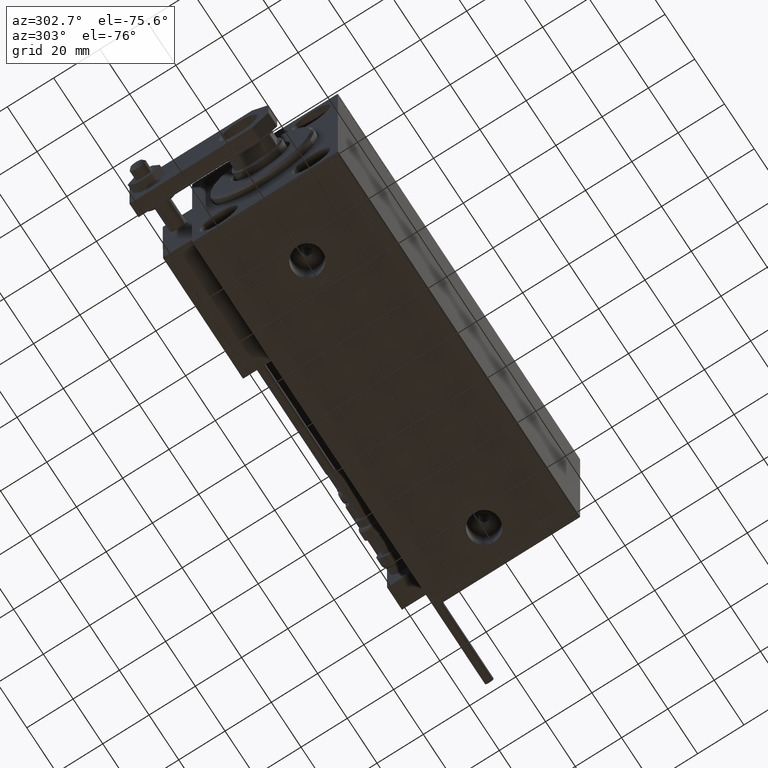
[diagram: clean part render]
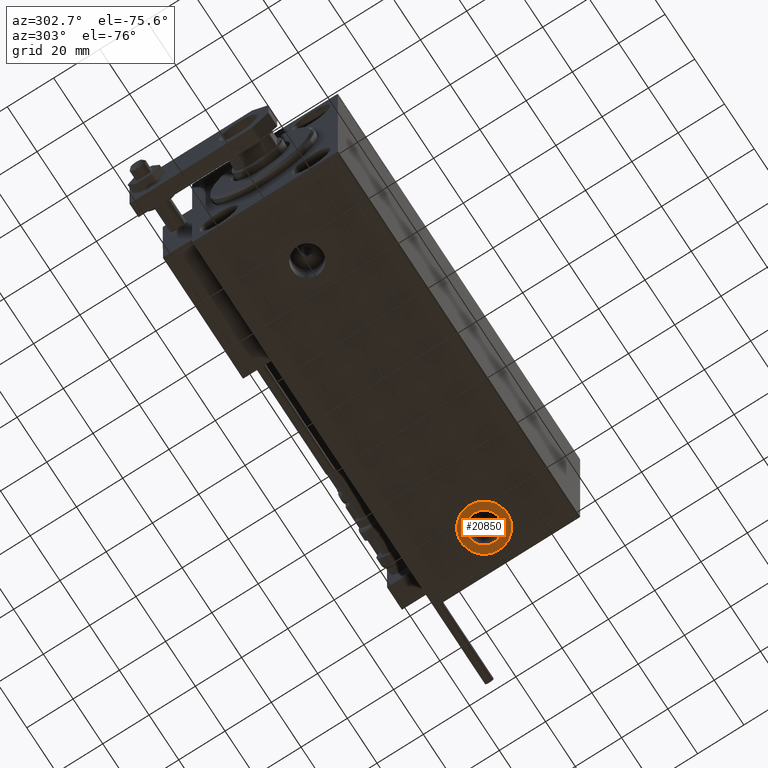
[diagram: same view with one face highlighted and labeled with its STEP entity id]
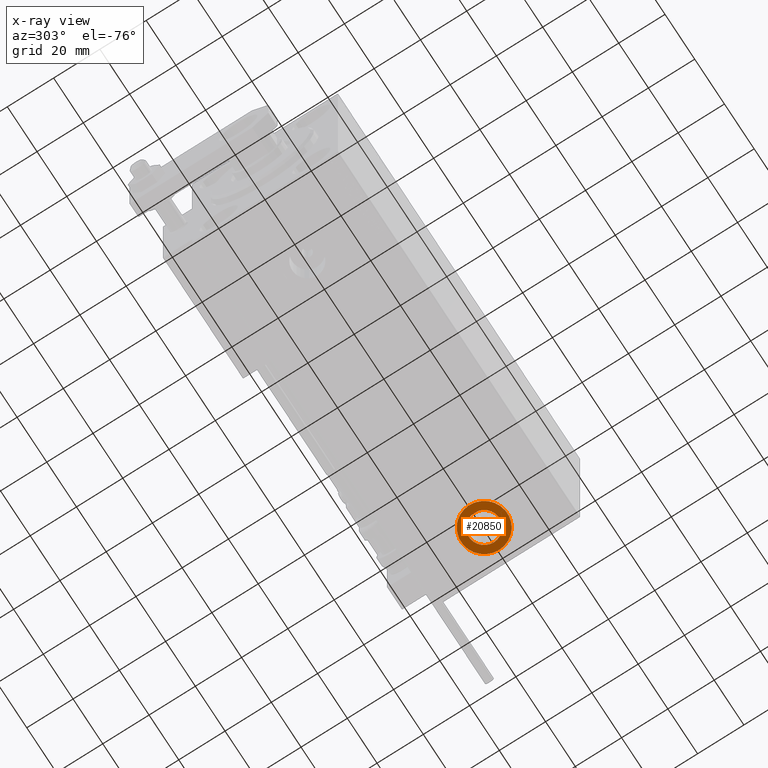
[diagram: x-ray of the same camera — body ghosted, the highlighted face saturated]
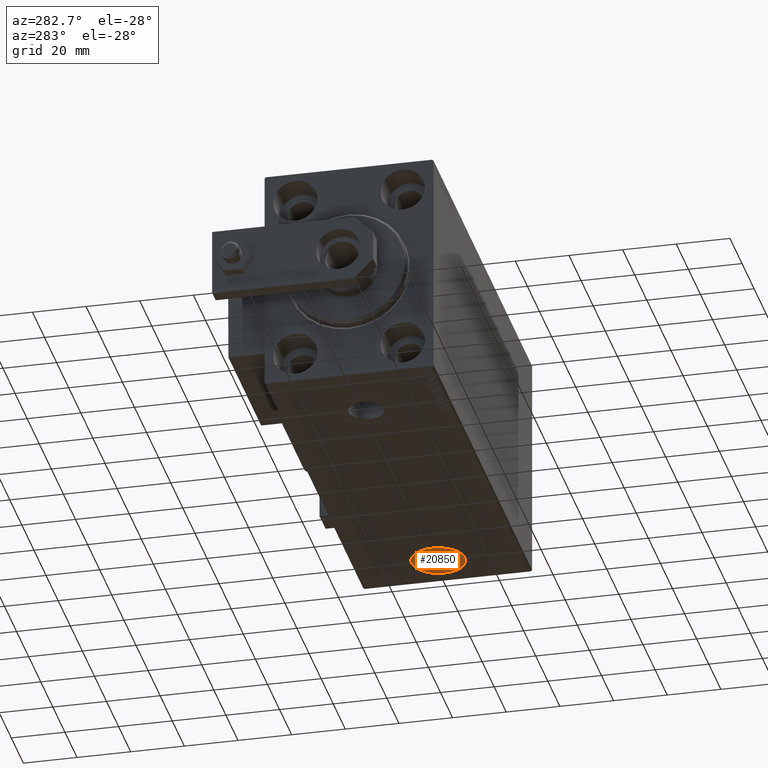
[diagram: same view with one face highlighted and labeled with its STEP entity id]
A machine part, auxiliary view. The second image highlights one B-rep face of the part: STEP entity #20850.
The next image is the same camera in x-ray: the body ghosted, the highlighted face saturated — about 0% of this face is hidden behind the body in this view.
A second angle (auxiliary view) of the same face is appended — the face is thin or edge-on in the first view.
In plain terms, the highlighted planar face has unit normal (0, 0, -1).
Its self-contained STEP definition (entity closure, byte-faithful):
#2206 = EDGE_LOOP ( 'NONE', ( #45303, #34180 ) ) ;
#3242 = AXIS2_PLACEMENT_3D ( 'NONE', #45728, #9993, #41813 ) ;
#7469 = CARTESIAN_POINT ( 'NONE',  ( 137.5000000000000000, -2.140111449306856041E-14, -42.40000000000000568 ) ) ;
#7829 = FACE_OUTER_BOUND ( 'NONE', #2206, .T. ) ;
#7916 = AXIS2_PLACEMENT_3D ( 'NONE', #21454, #9706, #37107 ) ;
#9706 = DIRECTION ( 'NONE',  ( 0.000000000000000000, 0.000000000000000000, -1.000000000000000000 ) ) ;
#9993 = DIRECTION ( 'NONE',  ( 0.000000000000000000, 0.000000000000000000, -1.000000000000000000 ) ) ;
#10723 = CIRCLE ( 'NONE', #3242, 6.580000000000002736 ) ;
#11927 = VERTEX_POINT ( 'NONE', #25540 ) ;
#12008 = PLANE ( 'NONE',  #38840 ) ;
#15079 = EDGE_CURVE ( 'NONE', #11927, #34680, #16273, .T. ) ;
#15956 = ORIENTED_EDGE ( 'NONE', *, *, #41027, .F. ) ;
#16273 = CIRCLE ( 'NONE', #33768, 10.00000000000000888 ) ;
#17283 = CARTESIAN_POINT ( 'NONE',  ( 140.9200000000000159, -2.140111449306856041E-14, -42.40000000000000568 ) ) ;
#17699 = DIRECTION ( 'NONE',  ( -1.000000000000000000, 0.000000000000000000, 0.000000000000000000 ) ) ;
#18415 = CARTESIAN_POINT ( 'NONE',  ( 147.5000000000000284, -2.140111449306856041E-14, -42.40000000000000568 ) ) ;
#20153 = CARTESIAN_POINT ( 'NONE',  ( 154.0800000000000125, -2.059529689922959822E-14, -42.40000000000000568 ) ) ;
#20850 = ADVANCED_FACE ( 'NONE', ( #32082, #7829 ), #12008, .T. ) ;
#21454 = CARTESIAN_POINT ( 'NONE',  ( 147.5000000000000284, -2.140111449306856041E-14, -42.40000000000000568 ) ) ;
#25280 = DIRECTION ( 'NONE',  ( -1.000000000000000000, 0.000000000000000000, 0.000000000000000000 ) ) ;
#25540 = CARTESIAN_POINT ( 'NONE',  ( 157.5000000000000284, -2.017646769392120893E-14, -42.40000000000000568 ) ) ;
#27219 = EDGE_CURVE ( 'NONE', #48633, #47962, #10723, .T. ) ;
#29940 = DIRECTION ( 'NONE',  ( 0.000000000000000000, 0.000000000000000000, -1.000000000000000000 ) ) ;
#32082 = FACE_BOUND ( 'NONE', #45226, .T. ) ;
#33459 = AXIS2_PLACEMENT_3D ( 'NONE', #49764, #29940, #17699 ) ;
#33768 = AXIS2_PLACEMENT_3D ( 'NONE', #18415, #34323, #25280 ) ;
#34180 = ORIENTED_EDGE ( 'NONE', *, *, #15079, .T. ) ;
#34318 = CIRCLE ( 'NONE', #33459, 6.580000000000002736 ) ;
#34323 = DIRECTION ( 'NONE',  ( 0.000000000000000000, 0.000000000000000000, -1.000000000000000000 ) ) ;
#34680 = VERTEX_POINT ( 'NONE', #7469 ) ;
#37014 = ORIENTED_EDGE ( 'NONE', *, *, #27219, .F. ) ;
#37107 = DIRECTION ( 'NONE',  ( -1.000000000000000000, 0.000000000000000000, 0.000000000000000000 ) ) ;
#38840 = AXIS2_PLACEMENT_3D ( 'NONE', #51387, #47485, #39902 ) ;
#39902 = DIRECTION ( 'NONE',  ( -1.000000000000000000, 0.000000000000000000, -0.000000000000000000 ) ) ;
#41027 = EDGE_CURVE ( 'NONE', #47962, #48633, #34318, .T. ) ;
#41813 = DIRECTION ( 'NONE',  ( -1.000000000000000000, 0.000000000000000000, 0.000000000000000000 ) ) ;
#45226 = EDGE_LOOP ( 'NONE', ( #37014, #15956 ) ) ;
#45303 = ORIENTED_EDGE ( 'NONE', *, *, #48719, .T. ) ;
#45728 = CARTESIAN_POINT ( 'NONE',  ( 147.5000000000000284, -2.140111449306856041E-14, -42.40000000000000568 ) ) ;
#47485 = DIRECTION ( 'NONE',  ( 0.000000000000000000, 0.000000000000000000, -1.000000000000000000 ) ) ;
#47962 = VERTEX_POINT ( 'NONE', #20153 ) ;
#48633 = VERTEX_POINT ( 'NONE', #17283 ) ;
#48719 = EDGE_CURVE ( 'NONE', #34680, #11927, #48730, .T. ) ;
#48730 = CIRCLE ( 'NONE', #7916, 10.00000000000000888 ) ;
#49764 = CARTESIAN_POINT ( 'NONE',  ( 147.5000000000000284, -2.140111449306856041E-14, -42.40000000000000568 ) ) ;
#51387 = CARTESIAN_POINT ( 'NONE',  ( 147.5000000000000284, -2.140111449306856041E-14, -42.40000000000000568 ) ) ;